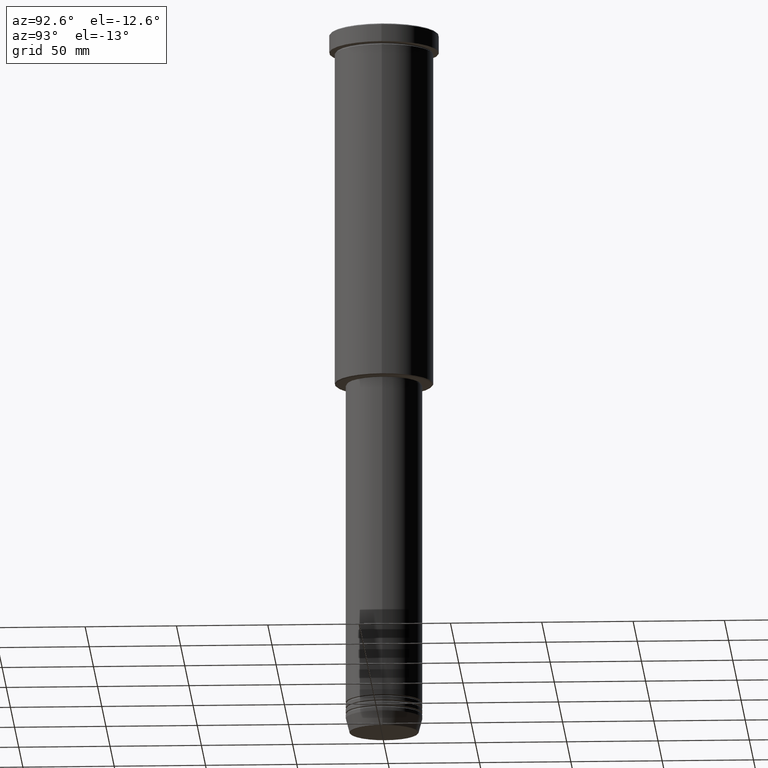
[diagram: clean part render]
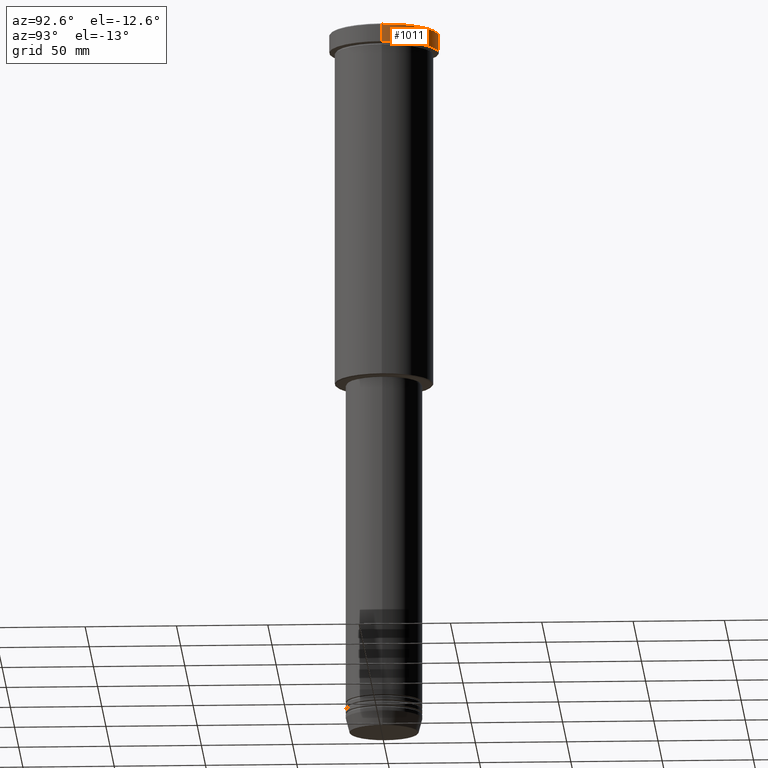
[diagram: same view with one face highlighted and labeled with its STEP entity id]
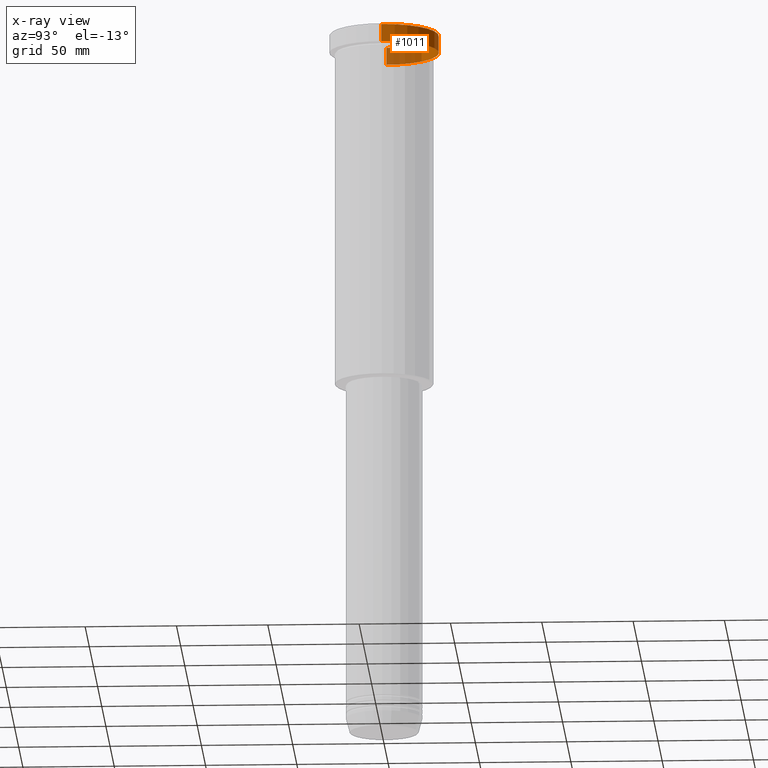
[diagram: x-ray of the same camera — body ghosted, the highlighted face saturated]
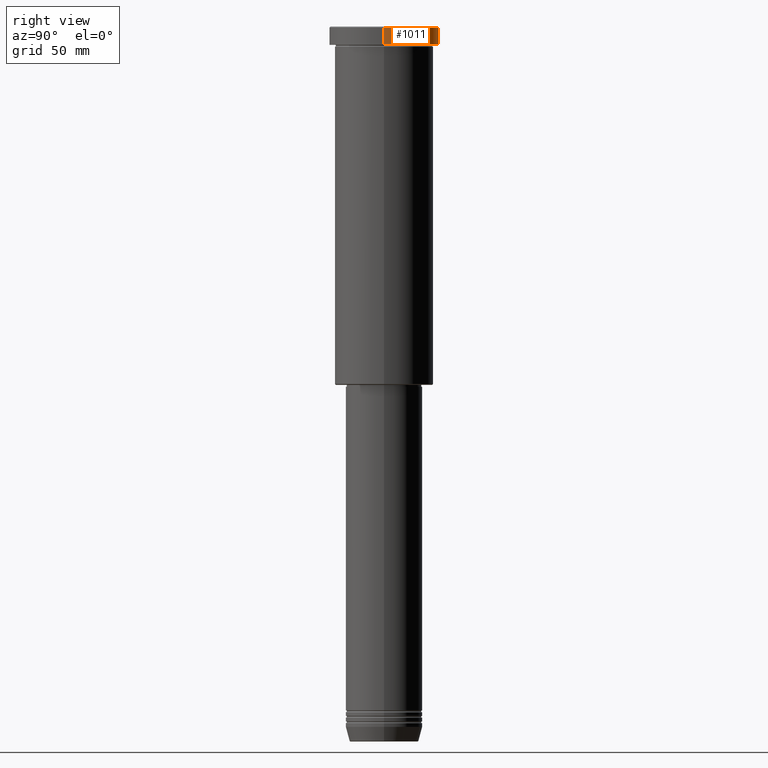
[diagram: same view with one face highlighted and labeled with its STEP entity id]
A machine part, auxiliary view. The second image highlights one B-rep face of the part: STEP entity #1011.
The next image is the same camera in x-ray: the body ghosted, the highlighted face saturated — about 34% of this face is hidden behind the body in this view.
A second angle (right view) of the same face is appended — the face is thin or edge-on in the first view.
In plain terms, the highlighted cylindrical surface (partial cylindrical patch) has radius 30 mm, axis along (-0, -0, 1).
Its self-contained STEP definition (entity closure, byte-faithful):
#1 = EDGE_CURVE ( 'NONE', #840, #360, #350, .T. ) ;
#2 = CARTESIAN_POINT ( 'NONE',  ( 30.00000000000000000, 0.000000000000000000, -9.999999999999992895 ) ) ;
#10 = EDGE_CURVE ( 'NONE', #831, #360, #447, .T. ) ;
#91 = CARTESIAN_POINT ( 'NONE',  ( 30.00000000000000000, 0.000000000000000000, -0.5000000000000073275 ) ) ;
#151 = EDGE_CURVE ( 'NONE', #846, #831, #578, .T. ) ;
#190 = VECTOR ( 'NONE', #810, 1000.000000000000000 ) ;
#198 = CARTESIAN_POINT ( 'NONE',  ( -30.00000000000000000, 3.673940397442059178E-15, -9.999999999999992895 ) ) ;
#336 = DIRECTION ( 'NONE',  ( 1.000000000000000000, 0.000000000000000000, 0.000000000000000000 ) ) ;
#350 = LINE ( 'NONE', #879, #190 ) ;
#360 = VERTEX_POINT ( 'NONE', #91 ) ;
#363 = DIRECTION ( 'NONE',  ( -0.000000000000000000, -0.000000000000000000, 1.000000000000000000 ) ) ;
#447 = CIRCLE ( 'NONE', #867, 30.00000000000000000 ) ;
#463 = ORIENTED_EDGE ( 'NONE', *, *, #151, .T. ) ;
#525 = DIRECTION ( 'NONE',  ( -0.000000000000000000, -0.000000000000000000, 1.000000000000000000 ) ) ;
#559 = VECTOR ( 'NONE', #363, 1000.000000000000000 ) ;
#572 = AXIS2_PLACEMENT_3D ( 'NONE', #970, #525, #336 ) ;
#578 = LINE ( 'NONE', #843, #559 ) ;
#621 = ORIENTED_EDGE ( 'NONE', *, *, #10, .T. ) ;
#645 = AXIS2_PLACEMENT_3D ( 'NONE', #829, #1007, #902 ) ;
#662 = EDGE_LOOP ( 'NONE', ( #1069, #463, #621, #1115 ) ) ;
#714 = CARTESIAN_POINT ( 'NONE',  ( 0.000000000000000000, 0.000000000000000000, -0.5000000000000073275 ) ) ;
#810 = DIRECTION ( 'NONE',  ( -0.000000000000000000, -0.000000000000000000, 1.000000000000000000 ) ) ;
#829 = CARTESIAN_POINT ( 'NONE',  ( 0.000000000000000000, 0.000000000000000000, -9.999999999999992895 ) ) ;
#831 = VERTEX_POINT ( 'NONE', #850 ) ;
#840 = VERTEX_POINT ( 'NONE', #2 ) ;
#843 = CARTESIAN_POINT ( 'NONE',  ( -30.00000000000000000, 3.673940397442059178E-15, 0.000000000000000000 ) ) ;
#846 = VERTEX_POINT ( 'NONE', #198 ) ;
#850 = CARTESIAN_POINT ( 'NONE',  ( -30.00000000000000000, 3.673940397442059178E-15, -0.5000000000000073275 ) ) ;
#867 = AXIS2_PLACEMENT_3D ( 'NONE', #714, #903, #984 ) ;
#879 = CARTESIAN_POINT ( 'NONE',  ( 30.00000000000000000, 0.000000000000000000, 0.000000000000000000 ) ) ;
#902 = DIRECTION ( 'NONE',  ( 1.000000000000000000, 0.000000000000000000, 0.000000000000000000 ) ) ;
#903 = DIRECTION ( 'NONE',  ( 0.000000000000000000, 0.000000000000000000, -1.000000000000000000 ) ) ;
#970 = CARTESIAN_POINT ( 'NONE',  ( 0.000000000000000000, 0.000000000000000000, 0.000000000000000000 ) ) ;
#984 = DIRECTION ( 'NONE',  ( 1.000000000000000000, 0.000000000000000000, 0.000000000000000000 ) ) ;
#1007 = DIRECTION ( 'NONE',  ( -0.000000000000000000, -0.000000000000000000, 1.000000000000000000 ) ) ;
#1011 = ADVANCED_FACE ( 'NONE', ( #1149 ), #1051, .T. ) ;
#1051 = CYLINDRICAL_SURFACE ( 'NONE', #572, 30.00000000000000000 ) ;
#1069 = ORIENTED_EDGE ( 'NONE', *, *, #1159, .T. ) ;
#1115 = ORIENTED_EDGE ( 'NONE', *, *, #1, .F. ) ;
#1144 = CIRCLE ( 'NONE', #645, 30.00000000000000000 ) ;
#1149 = FACE_OUTER_BOUND ( 'NONE', #662, .T. ) ;
#1159 = EDGE_CURVE ( 'NONE', #840, #846, #1144, .T. ) ;